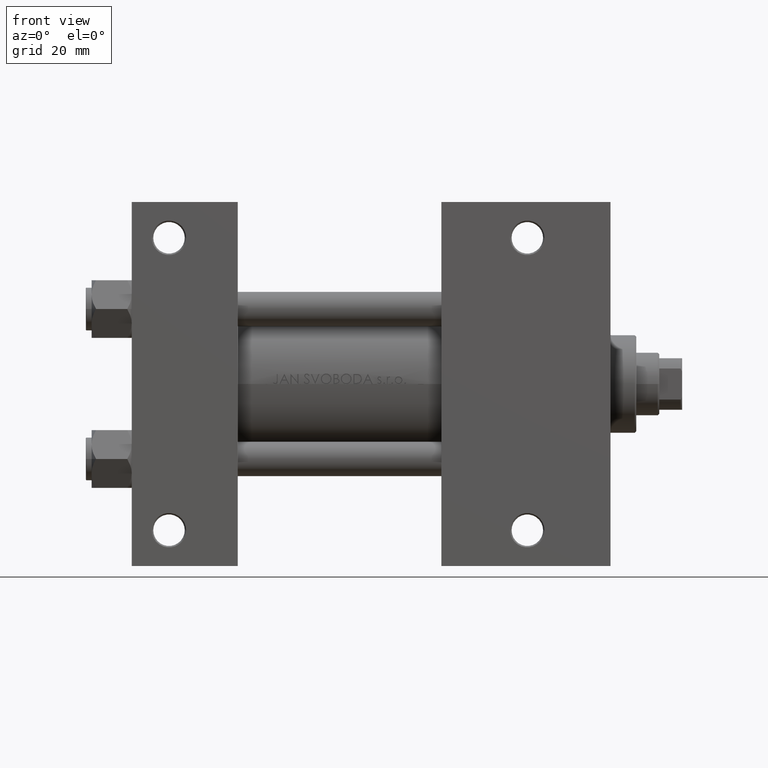
[diagram: clean part render]
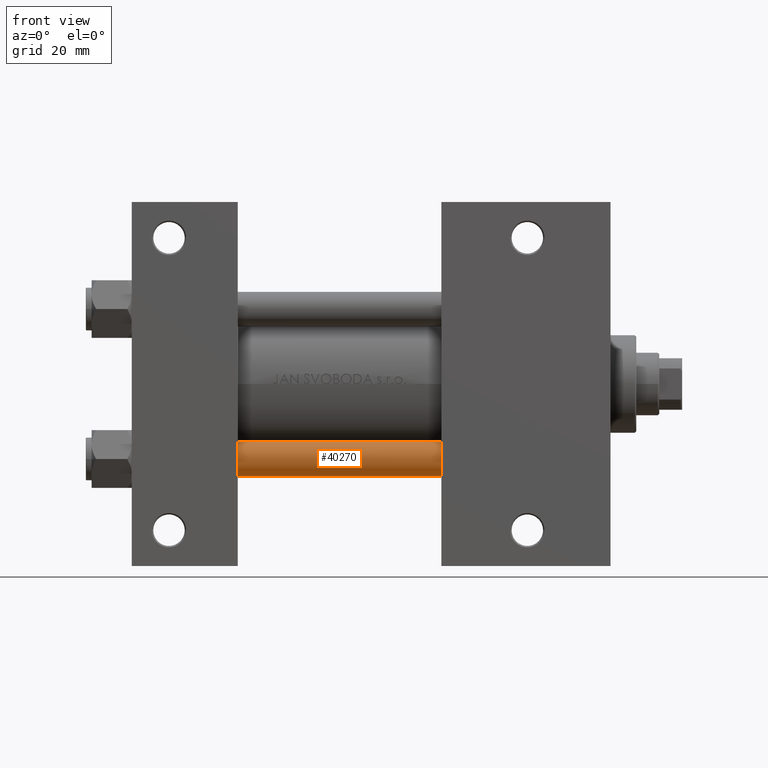
[diagram: same view with one face highlighted and labeled with its STEP entity id]
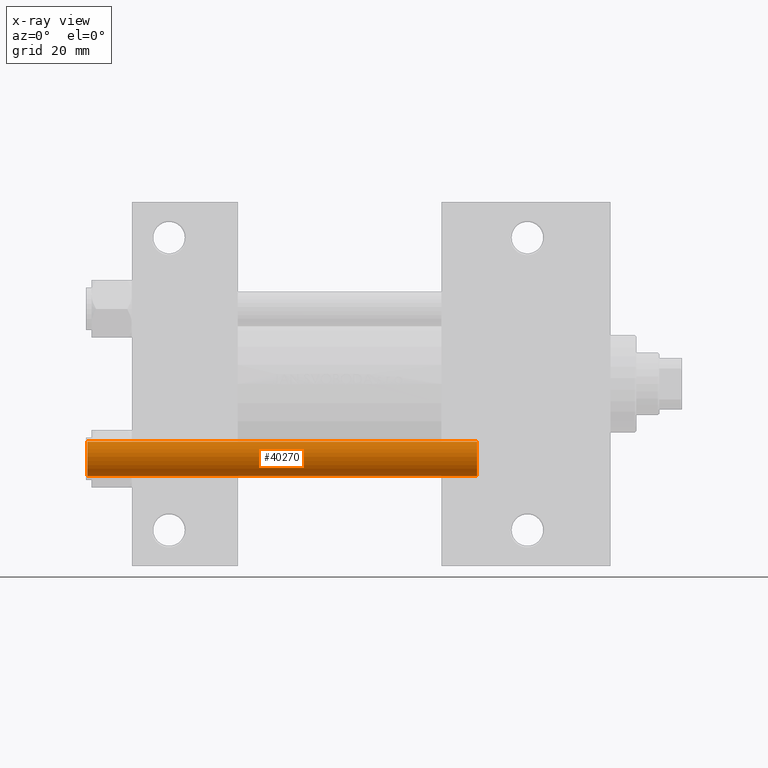
[diagram: x-ray of the same camera — body ghosted, the highlighted face saturated]
A machine part, front view. The second image highlights one B-rep face of the part: STEP entity #40270.
The next image is the same camera in x-ray: the body ghosted, the highlighted face saturated — about 0% of this face is hidden behind the body in this view.
In plain terms, the highlighted cylindrical surface (edge-blend (fillet) strip) has radius 6 mm, axis along (-1, 0, 0).
Its self-contained STEP definition (entity closure, byte-faithful):
#1460 = ORIENTED_EDGE ( 'NONE', *, *, #5839, .T. ) ;
#1889 = EDGE_CURVE ( 'NONE', #5643, #18172, #44677, .T. ) ;
#2123 = EDGE_CURVE ( 'NONE', #18172, #43824, #36126, .T. ) ;
#2527 = DIRECTION ( 'NONE',  ( -0.000000000000000000, -0.000000000000000000, -1.000000000000000000 ) ) ;
#3276 = DIRECTION ( 'NONE',  ( 1.000000000000000000, 0.000000000000000000, 0.000000000000000000 ) ) ;
#3499 = CYLINDRICAL_SURFACE ( 'NONE', #31566, 6.000000000000000888 ) ;
#4728 = CARTESIAN_POINT ( 'NONE',  ( -6.000000000000000888, 0.000000000000000000, 0.5000000000000281997 ) ) ;
#5149 = AXIS2_PLACEMENT_3D ( 'NONE', #17734, #36907, #3276 ) ;
#5643 = VERTEX_POINT ( 'NONE', #15954 ) ;
#5839 = EDGE_CURVE ( 'NONE', #14800, #5643, #37825, .T. ) ;
#7250 = FACE_OUTER_BOUND ( 'NONE', #11533, .T. ) ;
#10568 = DIRECTION ( 'NONE',  ( -0.000000000000000000, -0.000000000000000000, -1.000000000000000000 ) ) ;
#11109 = DIRECTION ( 'NONE',  ( 0.000000000000000000, 0.000000000000000000, -1.000000000000000000 ) ) ;
#11533 = EDGE_LOOP ( 'NONE', ( #1460, #39669, #23464, #29225 ) ) ;
#14800 = VERTEX_POINT ( 'NONE', #18136 ) ;
#15050 = CARTESIAN_POINT ( 'NONE',  ( 6.000000000000000888, 7.347880794884120722E-16, 137.0000000000000000 ) ) ;
#15954 = CARTESIAN_POINT ( 'NONE',  ( 6.000000000000000888, 7.347880794884120722E-16, 136.4999999999999716 ) ) ;
#17734 = CARTESIAN_POINT ( 'NONE',  ( 0.000000000000000000, 0.000000000000000000, 0.5000000000000281997 ) ) ;
#18136 = CARTESIAN_POINT ( 'NONE',  ( -6.000000000000000888, 0.000000000000000000, 136.4999999999999716 ) ) ;
#18172 = VERTEX_POINT ( 'NONE', #24175 ) ;
#18204 = DIRECTION ( 'NONE',  ( -1.000000000000000000, 0.000000000000000000, 0.000000000000000000 ) ) ;
#23464 = ORIENTED_EDGE ( 'NONE', *, *, #2123, .T. ) ;
#24175 = CARTESIAN_POINT ( 'NONE',  ( 6.000000000000000888, 7.347880794884120722E-16, 0.5000000000000281997 ) ) ;
#26801 = CARTESIAN_POINT ( 'NONE',  ( 0.000000000000000000, 0.000000000000000000, 136.4999999999999716 ) ) ;
#27391 = VECTOR ( 'NONE', #10568, 1000.000000000000000 ) ;
#29225 = ORIENTED_EDGE ( 'NONE', *, *, #42828, .F. ) ;
#31530 = VECTOR ( 'NONE', #40107, 1000.000000000000000 ) ;
#31566 = AXIS2_PLACEMENT_3D ( 'NONE', #37126, #2527, #18204 ) ;
#32381 = LINE ( 'NONE', #43834, #31530 ) ;
#36126 = CIRCLE ( 'NONE', #5149, 6.000000000000000888 ) ;
#36907 = DIRECTION ( 'NONE',  ( -0.000000000000000000, -0.000000000000000000, 1.000000000000000000 ) ) ;
#37126 = CARTESIAN_POINT ( 'NONE',  ( 0.000000000000000000, 0.000000000000000000, 137.0000000000000000 ) ) ;
#37825 = CIRCLE ( 'NONE', #46569, 6.000000000000000888 ) ;
#39669 = ORIENTED_EDGE ( 'NONE', *, *, #1889, .T. ) ;
#40107 = DIRECTION ( 'NONE',  ( -0.000000000000000000, -0.000000000000000000, -1.000000000000000000 ) ) ;
#40270 = ADVANCED_FACE ( 'NONE', ( #7250 ), #3499, .T. ) ;
#41484 = DIRECTION ( 'NONE',  ( 1.000000000000000000, 0.000000000000000000, 0.000000000000000000 ) ) ;
#42828 = EDGE_CURVE ( 'NONE', #14800, #43824, #32381, .T. ) ;
#43824 = VERTEX_POINT ( 'NONE', #4728 ) ;
#43834 = CARTESIAN_POINT ( 'NONE',  ( -6.000000000000000888, 0.000000000000000000, 137.0000000000000000 ) ) ;
#44677 = LINE ( 'NONE', #15050, #27391 ) ;
#46569 = AXIS2_PLACEMENT_3D ( 'NONE', #26801, #11109, #41484 ) ;